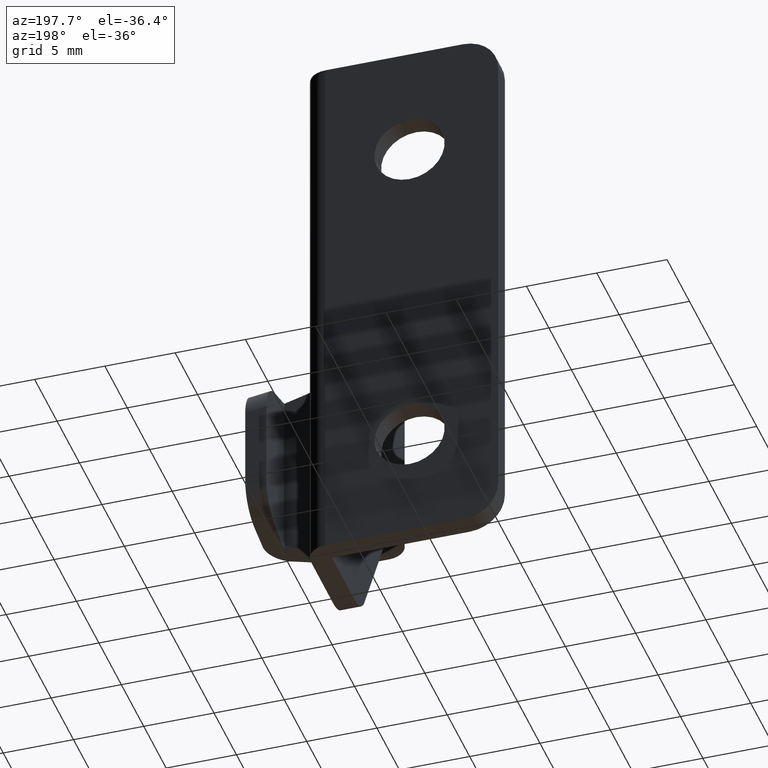
[diagram: clean part render]
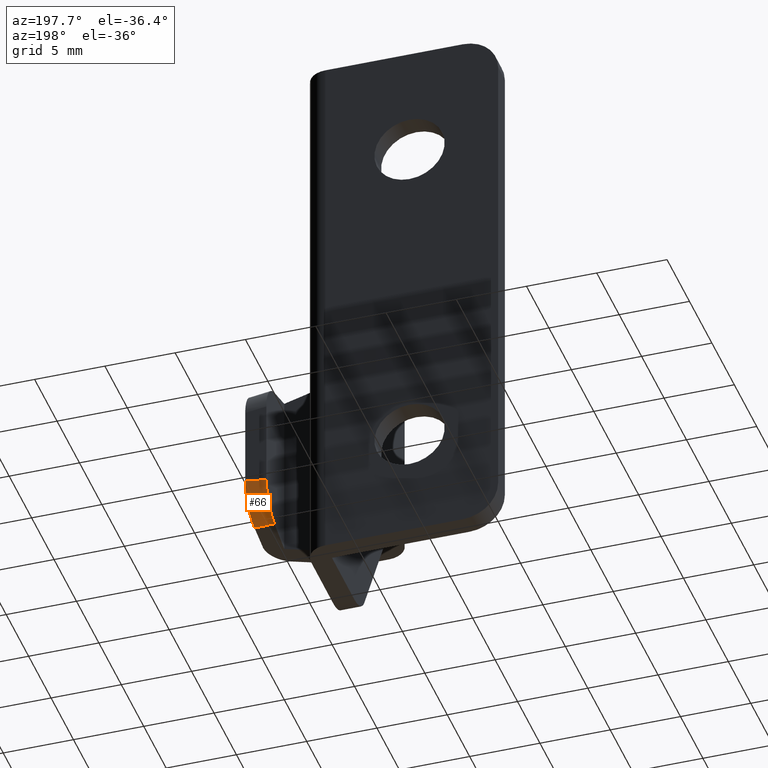
[diagram: same view with one face highlighted and labeled with its STEP entity id]
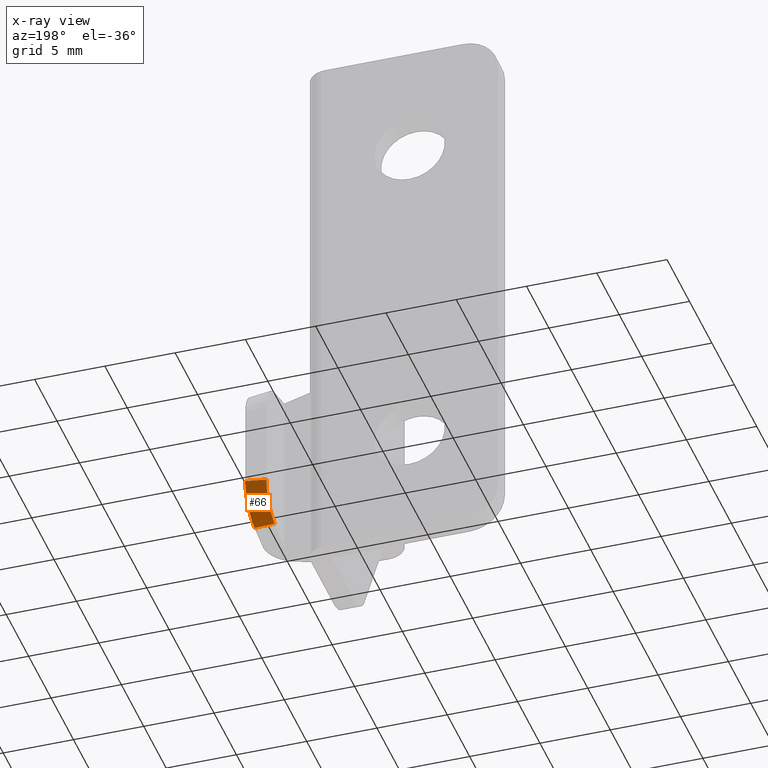
[diagram: x-ray of the same camera — body ghosted, the highlighted face saturated]
A machine part, auxiliary view. The second image highlights one B-rep face of the part: STEP entity #66.
The next image is the same camera in x-ray: the body ghosted, the highlighted face saturated — about 0% of this face is hidden behind the body in this view.
In plain terms, the highlighted face is a freeform B-spline surface patch.
Its self-contained STEP definition (entity closure, byte-faithful):
#66=ADVANCED_FACE('',(#338),#337,.T.);
#337=( BOUNDED_SURFACE() B_SPLINE_SURFACE( 3,2,((#549,#550,#551),(#552,#553,#554),(#555,#556,#557),(#558,#559,#560)), .UNSPECIFIED.,.F.,.F.,.F.) B_SPLINE_SURFACE_WITH_KNOTS((4,4),(3,3),(5.57073785120E-03,7.41411256396E-03),(0.00000000000E+00,1.00000000000E+00), .UNSPECIFIED. ) GEOMETRIC_REPRESENTATION_ITEM() RATIONAL_B_SPLINE_SURFACE(((1.00000000000E+00,7.56468127770E-01,1.00000000000E+00),(1.00000000000E+00,7.70323255458E-01,1.00000000000E+00),(1.00000000000E+00,7.83465790847E-01,1.00000000000E+00),(1.00000000000E+00,7.95720369459E-01,1.00000000000E+00))) REPRESENTATION_ITEM('') SURFACE() );
#338=FACE_OUTER_BOUND('',#561,.T.);
#549=CARTESIAN_POINT('',(2.26742345486E+01,-1.56387798583E+01,-5.31572484816E+00));
#550=CARTESIAN_POINT('',(2.26283521793E+01,-1.35000000000E+01,-5.00680833337E+00));
#551=CARTESIAN_POINT('',(2.23108008857E+01,-1.35000000000E+01,-2.86880106883E+00));
#552=CARTESIAN_POINT('',(2.20466344148E+01,-1.55339868488E+01,-5.39347049410E+00));
#553=CARTESIAN_POINT('',(2.20030639214E+01,-1.35000000000E+01,-5.00781457238E+00));
#554=CARTESIAN_POINT('',(2.17028815605E+01,-1.35000000000E+01,-2.95909335700E+00));
#555=CARTESIAN_POINT('',(2.14177957088E+01,-1.54316766226E+01,-5.45795644765E+00));
#556=CARTESIAN_POINT('',(2.13669906953E+01,-1.35000000000E+01,-5.00815844988E+00));
#557=CARTESIAN_POINT('',(2.10939973803E+01,-1.35000000000E+01,-3.04286647542E+00));
#558=CARTESIAN_POINT('',(2.07888002696E+01,-1.53341454681E+01,-5.51090473405E+00));
#559=CARTESIAN_POINT('',(2.07247636271E+01,-1.35000000000E+01,-5.00815001948E+00));
#560=CARTESIAN_POINT('',(2.04843333251E+01,-1.35000000000E+01,-3.12052032519E+00));
#561=EDGE_LOOP('',(#742,#743,#744,#745));
#742=ORIENTED_EDGE('',*,*,#798,.F.);
#743=ORIENTED_EDGE('',*,*,#775,.F.);
#744=ORIENTED_EDGE('',*,*,#811,.F.);
#745=ORIENTED_EDGE('',*,*,#854,.F.);
#775=EDGE_CURVE('',#887,#895,#896,.T.);
#798=EDGE_CURVE('',#895,#1054,#1055,.T.);
#811=EDGE_CURVE('',#1134,#887,#1141,.T.);
#854=EDGE_CURVE('',#1054,#1134,#1421,.T.);
#887=VERTEX_POINT('',#1498);
#895=VERTEX_POINT('',#1503);
#896=(BOUNDED_CURVE() B_SPLINE_CURVE(3,(#1504,#1505,#1506,#1507),.UNSPECIFIED.,.F.,.F.) B_SPLINE_CURVE_WITH_KNOTS((4,4),(-5.99999999987E-08,1.52654263310E-03),.UNSPECIFIED.) CURVE() GEOMETRIC_REPRESENTATION_ITEM() RATIONAL_B_SPLINE_CURVE((1.00000000000E+00,1.00000000000E+00,1.00000000000E+00,1.00000000000E+00)) REPRESENTATION_ITEM('') );
#1054=VERTEX_POINT('',#1602);
#1055=(BOUNDED_CURVE() B_SPLINE_CURVE(3,(#1603,#1604,#1605,#1606,#1607,#1608,#1609,#1610,#1611,#1612,#1613,#1614,#1615,#1616),.UNSPECIFIED.,.F.,.F.) B_SPLINE_CURVE_WITH_KNOTS((4,2,2,2,2,2,4),(0.00000000000E+00,8.76091521893E-04,1.31413728284E-03,1.75218304379E-03,2.19022880473E-03,2.62827456568E-03,3.50436608757E-03),.UNSPECIFIED.) CURVE() GEOMETRIC_REPRESENTATION_ITEM() RATIONAL_B_SPLINE_CURVE((1.00000000000E+00,1.00000000000E+00,1.00000000000E+00,1.00000000000E+00,1.00000000000E+00,1.00000000000E+00,1.00000000000E+00,1.00000000000E+00,1.00000000000E+00,1.00000000000E+00,1.00000000000E+00,1.00000000000E+00,1.00000000000E+00,1.00000000000E+00)) REPRESENTATION_ITEM('') );
#1134=VERTEX_POINT('',#1657);
#1141=(BOUNDED_CURVE() B_SPLINE_CURVE(3,(#1661,#1662,#1663,#1664,#1665,#1666,#1667,#1668,#1669,#1670,#1671,#1672),.UNSPECIFIED.,.F.,.F.) B_SPLINE_CURVE_WITH_KNOTS((4,2,2,2,2,4),(0.00000000000E+00,8.13406581266E-04,1.62681316253E-03,2.44021974380E-03,2.84692303443E-03,3.25362632506E-03),.UNSPECIFIED.) CURVE() GEOMETRIC_REPRESENTATION_ITEM() RATIONAL_B_SPLINE_CURVE((1.00000000000E+00,1.00000000000E+00,1.00000000000E+00,1.00000000000E+00,1.00000000000E+00,1.00000000000E+00,1.00000000000E+00,1.00000000000E+00,1.00000000000E+00,1.00000000000E+00,1.00000000000E+00,1.00000000000E+00)) REPRESENTATION_ITEM('') );
#1421=(BOUNDED_CURVE() B_SPLINE_CURVE(3,(#1833,#1834,#1835,#1836,#1837,#1838,#1839,#1840,#1841,#1842,#1843,#1844,#1845),.UNSPECIFIED.,.F.,.F.) B_SPLINE_CURVE_WITH_KNOTS((4,3,3,3,4),(0.00000000000E+00,1.11012766566E-04,7.94519280862E-04,1.24980621874E-03,1.51456204572E-03),.UNSPECIFIED.) CURVE() GEOMETRIC_REPRESENTATION_ITEM() RATIONAL_B_SPLINE_CURVE((1.00000000000E+00,1.00000000000E+00,1.00000000000E+00,1.00000000000E+00,1.00000000000E+00,1.00000000000E+00,1.00000000000E+00,1.00000000000E+00,1.00000000000E+00,1.00000000000E+00,1.00000000000E+00,1.00000000000E+00,1.00000000000E+00)) REPRESENTATION_ITEM('') );
#1498=CARTESIAN_POINT('',(2.07999880000E+01,-1.53358807201E+01,-5.50996175126E+00));
#1503=CARTESIAN_POINT('',(2.22999880000E+01,-1.55766201433E+01,-5.36051883085E+00));
#1504=CARTESIAN_POINT('',(2.07999880000E+01,-1.53358807201E+01,-5.50996175126E+00));
#1505=CARTESIAN_POINT('',(2.13010971138E+01,-1.54136202067E+01,-5.46767730929E+00));
#1506=CARTESIAN_POINT('',(2.18011564390E+01,-1.54942265155E+01,-5.41815956417E+00));
#1507=CARTESIAN_POINT('',(2.22999880000E+01,-1.55766201433E+01,-5.36051883085E+00));
#1602=CARTESIAN_POINT('',(2.22999880000E+01,-1.35000000000E+01,-2.87040637198E+00));
#1603=CARTESIAN_POINT('',(2.22999880000E+01,-1.55766201433E+01,-5.36051883085E+00));
#1604=CARTESIAN_POINT('',(2.22999880000E+01,-1.52847236514E+01,-5.30984222629E+00));
#1605=CARTESIAN_POINT('',(2.22999880000E+01,-1.50089887736E+01,-5.20911096432E+00));
#1606=CARTESIAN_POINT('',(2.22999880000E+01,-1.46258081889E+01,-4.98641918493E+00));
#1607=CARTESIAN_POINT('',(2.22999880000E+01,-1.45063455098E+01,-4.90192444187E+00));
#1608=CARTESIAN_POINT('',(2.22999880000E+01,-1.42833212709E+01,-4.71318569722E+00));
#1609=CARTESIAN_POINT('',(2.22999880000E+01,-1.41790222796E+01,-4.60801605314E+00));
#1610=CARTESIAN_POINT('',(2.22999880000E+01,-1.39907306798E+01,-4.38124810939E+00));
#1611=CARTESIAN_POINT('',(2.22999880000E+01,-1.39075653278E+01,-4.26100393924E+00));
#1612=CARTESIAN_POINT('',(2.22999880000E+01,-1.37625435611E+01,-4.00720252331E+00));
#1613=CARTESIAN_POINT('',(2.22999880000E+01,-1.37002584336E+01,-3.87230984578E+00));
#1614=CARTESIAN_POINT('',(2.22999880000E+01,-1.35508892501E+01,-3.45706309077E+00));
#1615=CARTESIAN_POINT('',(2.22999880000E+01,-1.35000000000E+01,-3.16658163067E+00));
#1616=CARTESIAN_POINT('',(2.22999880000E+01,-1.35000000000E+01,-2.87040637198E+00));
#1657=CARTESIAN_POINT('',(2.07999880000E+01,-1.35000000000E+01,-3.07975833894E+00));
#1661=CARTESIAN_POINT('',(2.07999880000E+01,-1.35000000000E+01,-3.07975833894E+00));
#1662=CARTESIAN_POINT('',(2.07999880000E+01,-1.35000000000E+01,-3.35478345046E+00));
#1663=CARTESIAN_POINT('',(2.07999880000E+01,-1.35434572549E+01,-3.62242122921E+00));
#1664=CARTESIAN_POINT('',(2.07999880000E+01,-1.37169031090E+01,-4.14298725577E+00));
#1665=CARTESIAN_POINT('',(2.07999880000E+01,-1.38434736712E+01,-4.38429900276E+00));
#1666=CARTESIAN_POINT('',(2.07999880000E+01,-1.41725554902E+01,-4.82182340423E+00));
#1667=CARTESIAN_POINT('',(2.07999880000E+01,-1.43703366576E+01,-5.01108551042E+00));
#1668=CARTESIAN_POINT('',(2.07999880000E+01,-1.47085469421E+01,-5.24256171966E+00));
#1669=CARTESIAN_POINT('',(2.07999880000E+01,-1.48284933022E+01,-5.31089067517E+00));
#1670=CARTESIAN_POINT('',(2.07999880000E+01,-1.50754324528E+01,-5.42584001343E+00));
#1671=CARTESIAN_POINT('',(2.07999880000E+01,-1.52033566061E+01,-5.47314940274E+00));
#1672=CARTESIAN_POINT('',(2.07999880000E+01,-1.53358807201E+01,-5.50996175126E+00));
#1833=CARTESIAN_POINT('',(2.22999880000E+01,-1.35000000000E+01,-2.87040637198E+00));
#1834=CARTESIAN_POINT('',(2.22633845857E+01,-1.35000000000E+01,-2.87583822139E+00));
#1835=CARTESIAN_POINT('',(2.22267776717E+01,-1.35000000000E+01,-2.88124653918E+00));
#1836=CARTESIAN_POINT('',(2.21901673119E+01,-1.35000000000E+01,-2.88663137754E+00));
#1837=CARTESIAN_POINT('',(2.19647587163E+01,-1.35000000000E+01,-2.91978562292E+00));
#1838=CARTESIAN_POINT('',(2.17392174453E+01,-1.35000000000E+01,-2.95204958019E+00));
#1839=CARTESIAN_POINT('',(2.15135563452E+01,-1.35000000000E+01,-2.98343917732E+00));
#1840=CARTESIAN_POINT('',(2.13632417654E+01,-1.35000000000E+01,-3.00434802736E+00));
#1841=CARTESIAN_POINT('',(2.12128727722E+01,-1.35000000000E+01,-3.02486923689E+00));
#1842=CARTESIAN_POINT('',(2.10624532162E+01,-1.35000000000E+01,-3.04500900009E+00));
#1843=CARTESIAN_POINT('',(2.09749819159E+01,-1.35000000000E+01,-3.05672058417E+00));
#1844=CARTESIAN_POINT('',(2.08874932580E+01,-1.35000000000E+01,-3.06830323479E+00));
#1845=CARTESIAN_POINT('',(2.07999880000E+01,-1.35000000000E+01,-3.07975833894E+00));